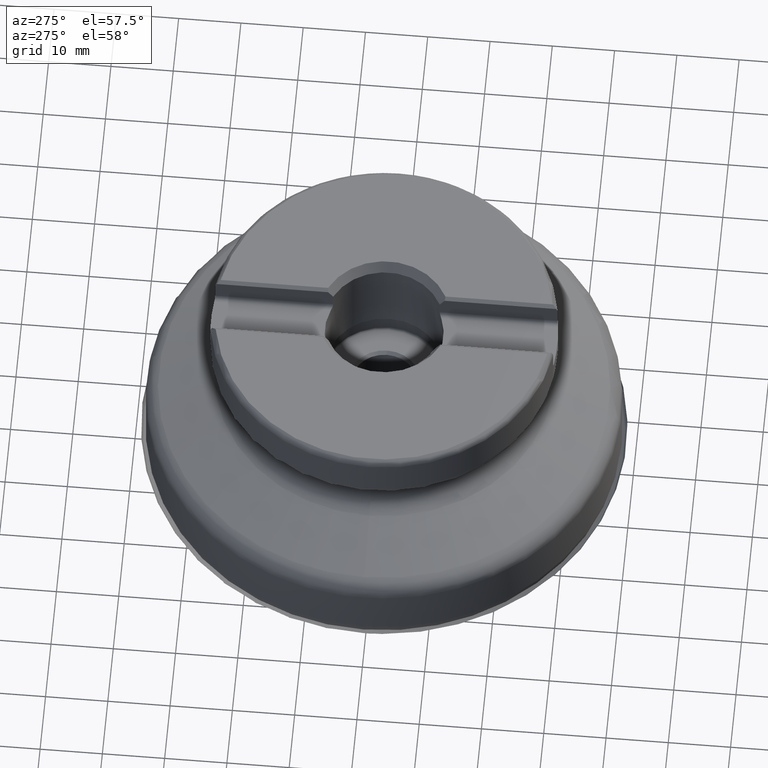
[diagram: clean part render]
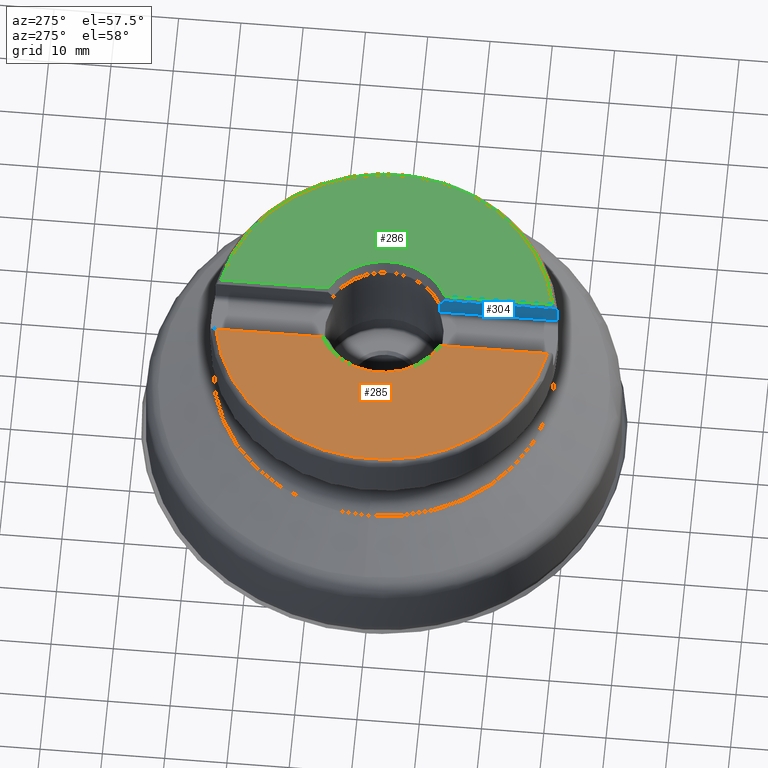
[diagram: same view with three faces highlighted in distinct colors, each labeled with its STEP entity id]
A machine part, auxiliary view with three faces highlighted in distinct colors.
Their STEP definitions:

[orange] entity #285 — the highlighted planar face has unit normal (-0, 0, -1).
#164=PLANE('',#1090);
#181=FACE_OUTER_BOUND('',#459,.T.);
#216=LINE('',#1892,#252);
#217=LINE('',#1893,#253);
#252=VECTOR('',#1225,1.);
#253=VECTOR('',#1226,1.);
#285=ADVANCED_FACE('',(#181),#164,.F.);
#459=EDGE_LOOP('',(#603,#604,#605,#606));
#603=ORIENTED_EDGE('',*,*,#896,.T.);
#604=ORIENTED_EDGE('',*,*,#897,.T.);
#605=ORIENTED_EDGE('',*,*,#886,.T.);
#606=ORIENTED_EDGE('',*,*,#898,.T.);
#801=VERTEX_POINT('',#1813);
#802=VERTEX_POINT('',#1814);
#809=VERTEX_POINT('',#1890);
#810=VERTEX_POINT('',#1891);
#886=EDGE_CURVE('',#801,#802,#975,.T.);
#896=EDGE_CURVE('',#809,#810,#977,.T.);
#897=EDGE_CURVE('',#810,#801,#216,.T.);
#898=EDGE_CURVE('',#802,#809,#217,.T.);
#975=CIRCLE('',#1085,27.0613314773548);
#977=CIRCLE('',#1089,10.525);
#1085=AXIS2_PLACEMENT_3D('',#1812,#1215,#1216);
#1089=AXIS2_PLACEMENT_3D('',#1889,#1223,#1224);
#1090=AXIS2_PLACEMENT_3D('',#1894,#1227,#1228);
#1215=DIRECTION('',(1.17145536458252E-15,0.,1.));
#1216=DIRECTION('',(-1.,0.,1.28206808850366E-15));
#1223=DIRECTION('',(-1.17145536458252E-15,0.,-1.));
#1224=DIRECTION('',(-1.,0.,1.31855466107501E-15));
#1225=DIRECTION('',(0.,1.,0.));
#1226=DIRECTION('',(0.,1.,0.));
#1227=DIRECTION('',(-1.17145536458252E-15,0.,-1.));
#1228=DIRECTION('',(-1.,0.,1.17267306976032E-15));
#1812=CARTESIAN_POINT('',(4.6858214583301E-14,0.,40.));
#1813=CARTESIAN_POINT('',(-4.67499999999995,26.6544562189378,40.));
#1814=CARTESIAN_POINT('',(-4.67499999999995,-26.6544562189378,40.));
#1889=CARTESIAN_POINT('',(4.6858214583301E-14,0.,40.));
#1890=CARTESIAN_POINT('',(-4.67499999999995,-9.42974018730103,40.));
#1891=CARTESIAN_POINT('',(-4.67499999999995,9.42974018730103,40.));
#1892=CARTESIAN_POINT('',(-4.67499999999995,26.7373341290278,40.));
#1893=CARTESIAN_POINT('',(-4.67499999999995,-9.66152161928958,40.));
#1894=CARTESIAN_POINT('',(4.6858214583301E-14,0.,40.));

[blue] entity #304 — the highlighted planar face has unit normal (-1, 0, 0).
#170=PLANE('',#1133);
#186=FACE_OUTER_BOUND('',#492,.T.);
#210=LINE('',#1685,#246);
#215=LINE('',#1808,#251);
#222=LINE('',#2024,#258);
#223=LINE('',#2025,#259);
#246=VECTOR('',#1193,1.);
#251=VECTOR('',#1210,1.);
#258=VECTOR('',#1318,1.);
#259=VECTOR('',#1319,1.);
#304=ADVANCED_FACE('',(#186),#170,.T.);
#492=EDGE_LOOP('',(#657,#658,#659,#660,#661,#662));
#657=ORIENTED_EDGE('',*,*,#884,.F.);
#658=ORIENTED_EDGE('',*,*,#933,.T.);
#659=ORIENTED_EDGE('',*,*,#868,.F.);
#660=ORIENTED_EDGE('',*,*,#895,.F.);
#661=ORIENTED_EDGE('',*,*,#934,.T.);
#662=ORIENTED_EDGE('',*,*,#908,.F.);
#783=VERTEX_POINT('',#1684);
#784=VERTEX_POINT('',#1686);
#799=VERTEX_POINT('',#1807);
#800=VERTEX_POINT('',#1809);
#808=VERTEX_POINT('',#1877);
#816=VERTEX_POINT('',#1924);
#868=EDGE_CURVE('',#783,#784,#210,.T.);
#884=EDGE_CURVE('',#799,#800,#215,.T.);
#895=EDGE_CURVE('',#808,#783,#1055,.T.);
#908=EDGE_CURVE('',#800,#816,#1059,.T.);
#933=EDGE_CURVE('',#799,#784,#222,.T.);
#934=EDGE_CURVE('',#808,#816,#223,.T.);
#1055=B_SPLINE_CURVE_WITH_KNOTS('',3,(#1878,#1879,#1880,#1881,#1882,#1883,
#1884,#1885,#1886,#1887),.UNSPECIFIED.,.F.,.F.,(4,3,3,4),(0.,0.218253089688509,
0.812483686195446,1.),.UNSPECIFIED.);
#1059=B_SPLINE_CURVE_WITH_KNOTS('',3,(#1920,#1921,#1922,#1923),
 .UNSPECIFIED.,.F.,.F.,(4,4),(0.,1.),.UNSPECIFIED.);
#1133=AXIS2_PLACEMENT_3D('',#2026,#1320,#1321);
#1193=DIRECTION('',(-1.17145536458252E-15,0.,-1.));
#1210=DIRECTION('',(1.17145536458252E-15,0.,1.));
#1318=DIRECTION('',(0.,-1.,0.));
#1319=DIRECTION('',(0.,1.,0.));
#1320=DIRECTION('',(-1.,0.,9.54614930085423E-16));
#1321=DIRECTION('',(9.54965273525232E-16,0.,1.));
#1684=CARTESIAN_POINT('',(4.17500000000004,-27.4978607167903,38.7));
#1685=CARTESIAN_POINT('',(4.17500000000001,-27.4978607167903,-3.98551733310665E-15));
#1686=CARTESIAN_POINT('',(4.17500000000005,-27.4978607167903,36.05));
#1807=CARTESIAN_POINT('',(4.17500000000005,-8.5612499087458,36.05));
#1808=CARTESIAN_POINT('',(4.17500000000001,-8.5612499087458,-3.98551733310665E-15));
#1809=CARTESIAN_POINT('',(4.17500000000004,-8.5612499087458,38.2679491924311));
#1877=CARTESIAN_POINT('',(4.17500000000004,-27.2640468779761,39.5000000000017));
#1878=CARTESIAN_POINT('',(4.17500000000004,-27.2640468779761,39.5000000000017));
#1879=CARTESIAN_POINT('',(4.17500000000004,-27.2971985704935,39.4480248846198));
#1880=CARTESIAN_POINT('',(4.17500000000004,-27.3271909633812,39.3938945808829));
#1881=CARTESIAN_POINT('',(4.17500000000004,-27.3536689581612,39.3382226568263));
#1882=CARTESIAN_POINT('',(4.17500000000004,-27.4250832750589,39.1880688230519));
#1883=CARTESIAN_POINT('',(4.17500000000004,-27.4716577704216,39.0235516444914));
#1884=CARTESIAN_POINT('',(4.17500000000004,-27.4893959453589,38.8582291245342));
#1885=CARTESIAN_POINT('',(4.17500000000004,-27.4950307273932,38.805712088897));
#1886=CARTESIAN_POINT('',(4.17500000000004,-27.4978607167903,38.7528184607944));
#1887=CARTESIAN_POINT('',(4.17500000000004,-27.4978607167903,38.7));
#1920=CARTESIAN_POINT('',(4.17500000000004,-8.5612499087458,38.2679491924311));
#1921=CARTESIAN_POINT('',(4.17500000000004,-8.82443856623309,38.6776812893851));
#1922=CARTESIAN_POINT('',(4.17500000000005,-9.0859708035215,39.0884409200042));
#1923=CARTESIAN_POINT('',(4.17500000000005,-9.34621430045943,39.5));
#1924=CARTESIAN_POINT('',(4.17500000000004,-9.34621430045944,39.5));
#2024=CARTESIAN_POINT('',(4.17500000000004,-27.4978607167903,36.05));
#2025=CARTESIAN_POINT('',(4.17500000000004,-9.66152161928958,39.5));
#2026=CARTESIAN_POINT('',(4.17500000000004,-50.,35.25));

[green] entity #286 — the highlighted planar face has unit normal (-0, 0, -1).
#165=PLANE('',#1092);
#182=FACE_OUTER_BOUND('',#460,.T.);
#218=LINE('',#1895,#254);
#219=LINE('',#1899,#255);
#254=VECTOR('',#1229,1.);
#255=VECTOR('',#1232,1.);
#286=ADVANCED_FACE('',(#182),#165,.F.);
#460=EDGE_LOOP('',(#607,#608,#609,#610));
#607=ORIENTED_EDGE('',*,*,#893,.T.);
#608=ORIENTED_EDGE('',*,*,#899,.T.);
#609=ORIENTED_EDGE('',*,*,#900,.T.);
#610=ORIENTED_EDGE('',*,*,#901,.T.);
#806=VERTEX_POINT('',#1867);
#807=VERTEX_POINT('',#1869);
#811=VERTEX_POINT('',#1896);
#812=VERTEX_POINT('',#1898);
#893=EDGE_CURVE('',#807,#806,#976,.T.);
#899=EDGE_CURVE('',#806,#811,#218,.T.);
#900=EDGE_CURVE('',#811,#812,#978,.T.);
#901=EDGE_CURVE('',#812,#807,#219,.T.);
#976=CIRCLE('',#1087,27.0613314773548);
#978=CIRCLE('',#1091,10.525);
#1087=AXIS2_PLACEMENT_3D('',#1868,#1219,#1220);
#1091=AXIS2_PLACEMENT_3D('',#1897,#1230,#1231);
#1092=AXIS2_PLACEMENT_3D('',#1900,#1233,#1234);
#1219=DIRECTION('',(1.17145536458252E-15,0.,1.));
#1220=DIRECTION('',(-1.,0.,1.28206808850366E-15));
#1229=DIRECTION('',(0.,-1.,0.));
#1230=DIRECTION('',(-1.17145536458252E-15,0.,-1.));
#1231=DIRECTION('',(-1.,0.,1.31855466107501E-15));
#1232=DIRECTION('',(0.,-1.,0.));
#1233=DIRECTION('',(-1.17145536458252E-15,0.,-1.));
#1234=DIRECTION('',(-1.,0.,1.17267306976032E-15));
#1867=CARTESIAN_POINT('',(4.67500000000004,26.6544562189378,40.));
#1868=CARTESIAN_POINT('',(4.6858214583301E-14,0.,40.));
#1869=CARTESIAN_POINT('',(4.67500000000004,-26.6544562189378,40.));
#1895=CARTESIAN_POINT('',(4.67500000000004,9.66152161928958,40.));
#1896=CARTESIAN_POINT('',(4.67500000000004,9.42974018730103,40.));
#1897=CARTESIAN_POINT('',(4.6858214583301E-14,0.,40.));
#1898=CARTESIAN_POINT('',(4.67500000000004,-9.42974018730103,40.));
#1899=CARTESIAN_POINT('',(4.67500000000004,-26.7373341290278,40.));
#1900=CARTESIAN_POINT('',(4.6858214583301E-14,0.,40.));